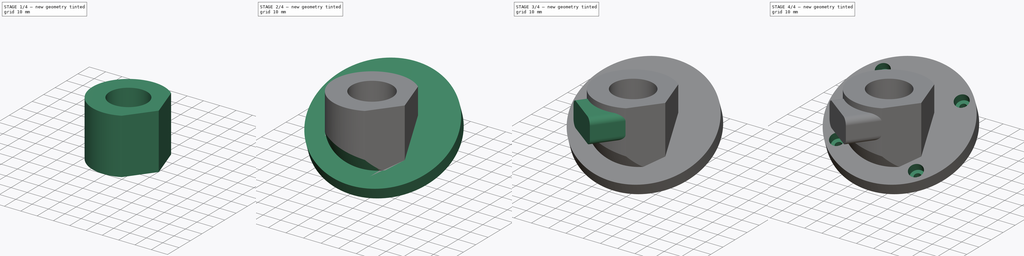
[diagram: build sequence overview — one tinted view per stage of 4, left to right]
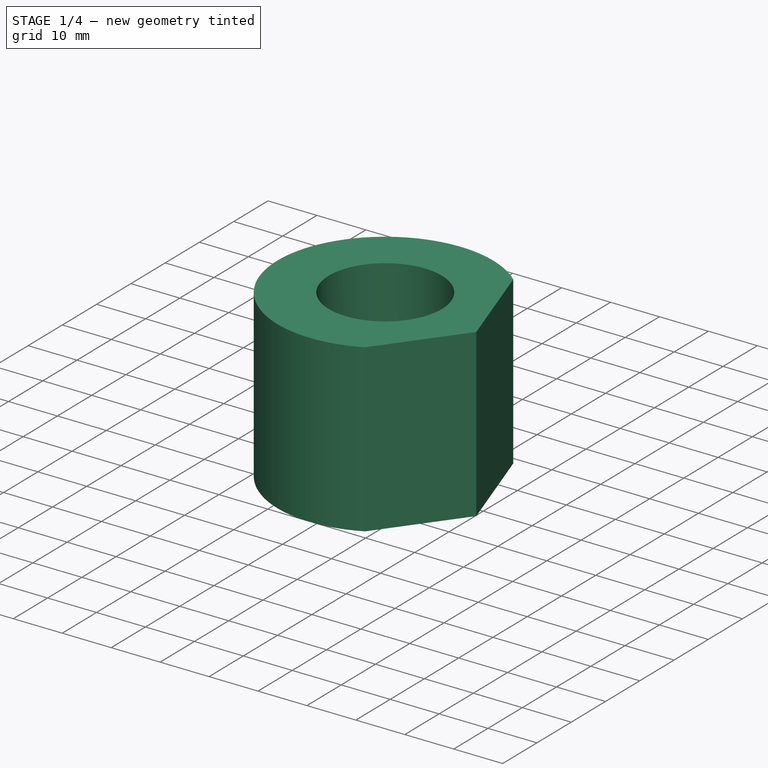
[diagram: stage 1 of 4 — iso view after this stage's code; geometry added in this stage tinted green]
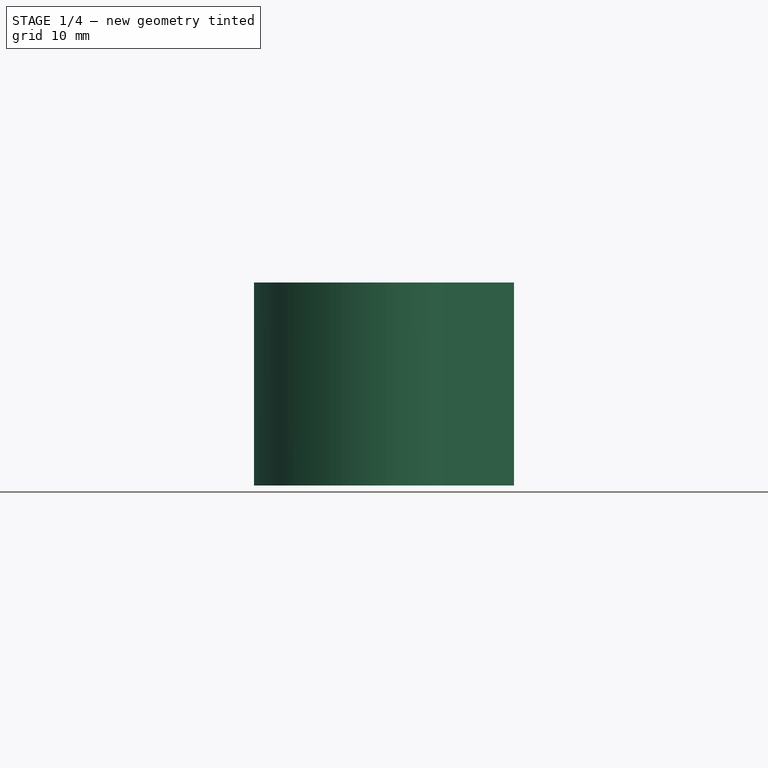
[diagram: stage 1 of 4 — front view after this stage's code; geometry added in this stage tinted green]
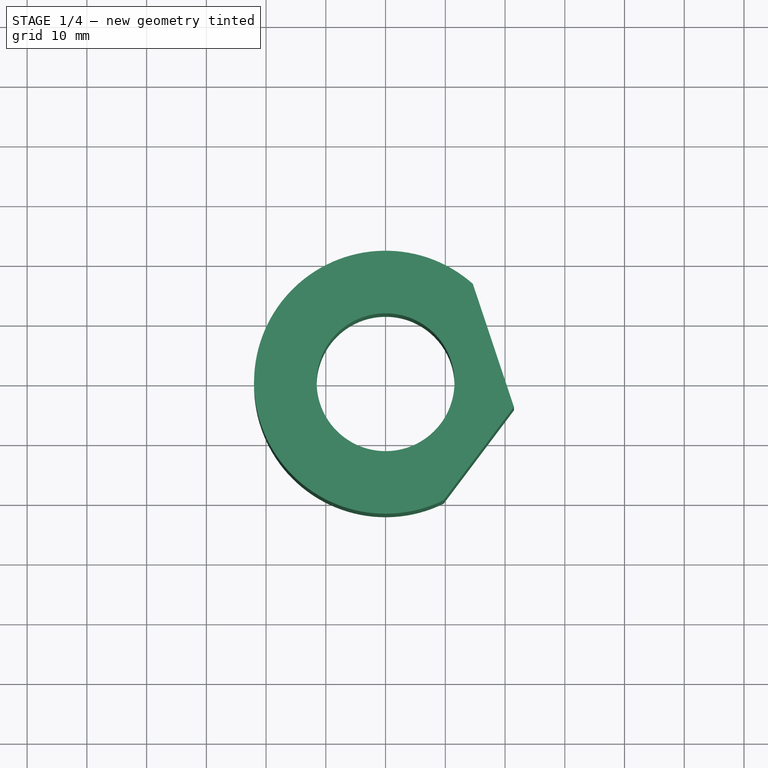
[diagram: stage 1 of 4 — top view after this stage's code; geometry added in this stage tinted green]
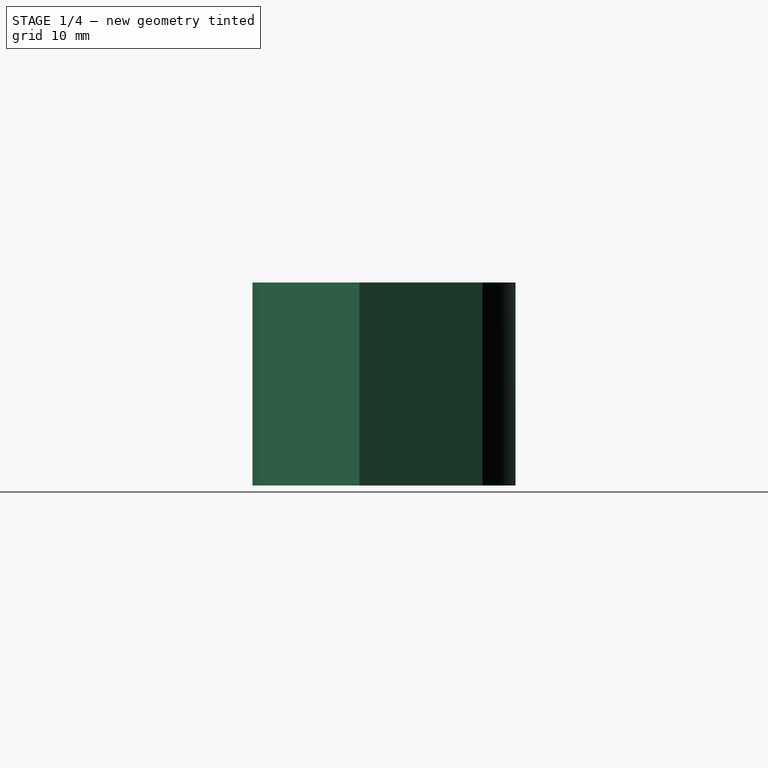
[diagram: stage 1 of 4 — right view after this stage's code; geometry added in this stage tinted green]
FCSTD DOCUMENT  (FreeCAD 0.21R33771 (Git))
Label: ex15
License: All rights reserved
LicenseURL: https://en.wikipedia.org/wiki/All_rights_reserved
objects: Sketcher::SketchObject×9, PartDesign::Pocket×6, PartDesign::Pad×4, PartDesign::Plane×1, PartDesign::Body×1
note: 31 computed .brp shape members not serialized (recipe doc carries the construction recipe); baked Part::Feature solids carry a one-line shape summary decoded from their .brp

FEATURE [Sketcher::SketchObject] Sketch
  FullyConstrained = false
  MapMode = 5
  Support = -> [XY_Plane]
  sketch-geometry (2):
    g0: Circle CenterX=0 CenterY=0 CenterZ=0 NormalX=0 NormalY=0 NormalZ=1 AngleXU=0 Radius=22.0162
    g1: Circle CenterX=0 CenterY=0 CenterZ=0 NormalX=0 NormalY=0 NormalZ=1 AngleXU=0 Radius=11.5391
  constraints (2):
    c: Coincident(g0,g-1)
    c: Coincident(g1,g0)
FEATURE [PartDesign::Pad] Pad
  Direction = (0,0,1)
  Length = 34
  Length2 = 10
  Profile = -> Sketch
  ReferenceAxis = -> Sketch [N_Axis]
  Type = 0
FEATURE [Sketcher::SketchObject] Sketch001
  FullyConstrained = false
  MapMode = 5
  Placement = pos=(0,0,34) rot=(0,0,1;0rad)
  Support = -> [Pad]
  sketch-geometry (5):
    g0: LineSegment StartX=13.7739 StartY=18.949 StartZ=0 EndX=21.4893 EndY=-4.12842 EndZ=0
    g1: LineSegment StartX=21.4893 StartY=-4.12842 StartZ=0 EndX=7.7952 EndY=-22.3093 EndZ=0
    g2: LineSegment StartX=13.7739 StartY=18.949 StartZ=0 EndX=25.6648 EndY=18.949 EndZ=0
    g3: LineSegment StartX=7.7952 StartY=-22.3093 StartZ=0 EndX=28.6535 EndY=-22.3093 EndZ=0
    g4: LineSegment StartX=25.6648 StartY=18.949 StartZ=0 EndX=28.6535 EndY=-22.3093 EndZ=0
  constraints (7):
    c: Coincident(g1,g0)
    c: Coincident(g2,g0)
    c: Horizontal(g2)
    c: Coincident(g3,g1)
    c: Horizontal(g3)
    c: Coincident(g4,g2)
    c: Coincident(g4,g3)
FEATURE [PartDesign::Pocket] Pocket
  BaseFeature = -> Pad
  Direction = (0,0,-1)
  Length = 5
  Length2 = 5
  Profile = -> Sketch001
  ReferenceAxis = -> Sketch001 [N_Axis]
  Type = 1
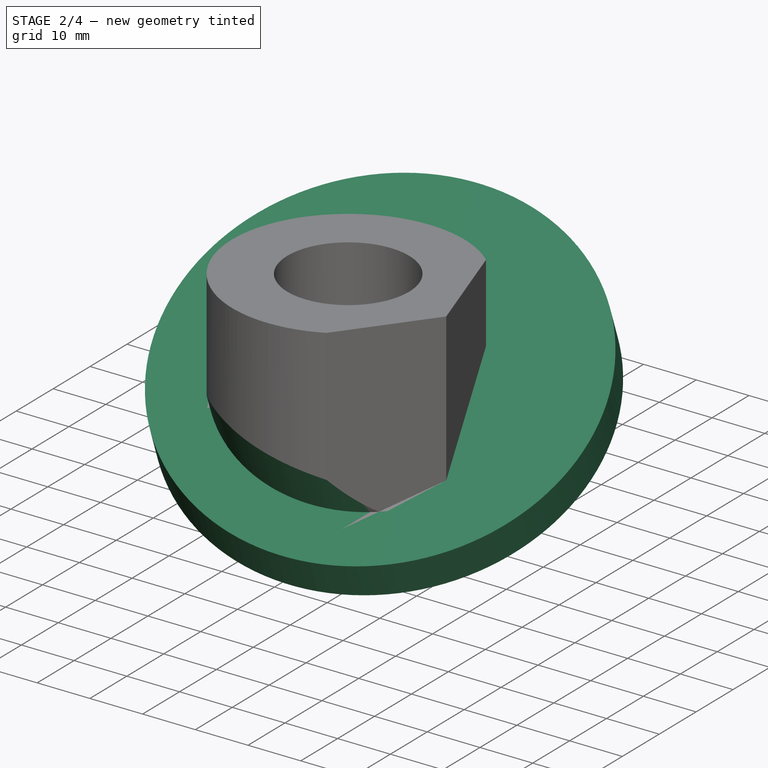
[diagram: stage 2 of 4 — iso view after this stage's code; geometry added in this stage tinted green]
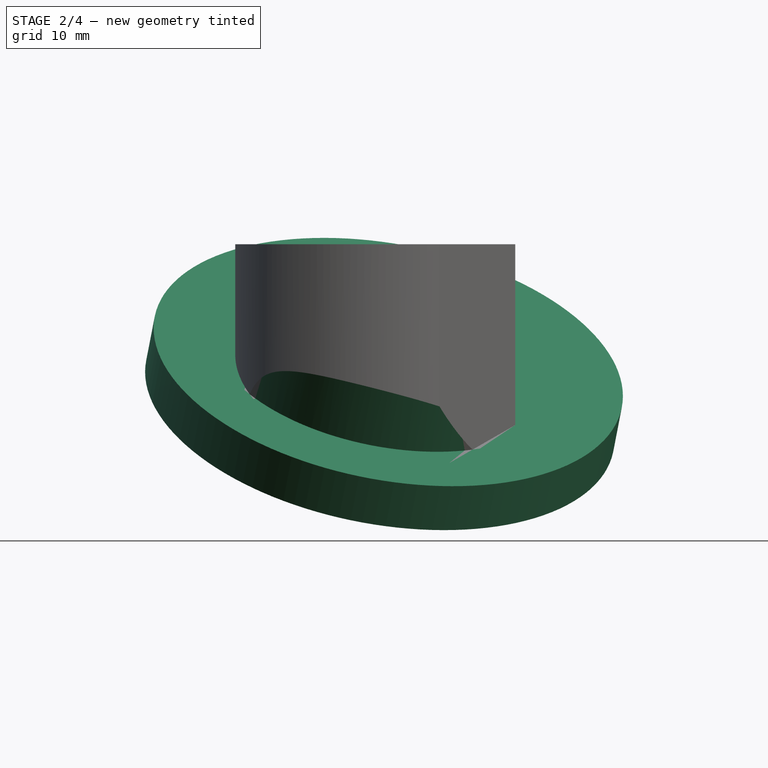
[diagram: stage 2 of 4 — front view after this stage's code; geometry added in this stage tinted green]
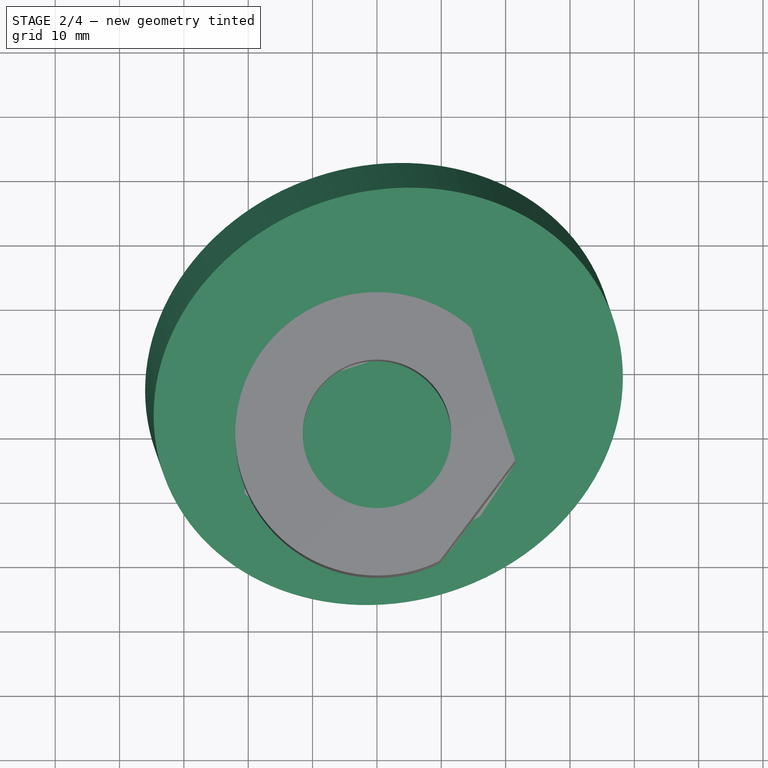
[diagram: stage 2 of 4 — top view after this stage's code; geometry added in this stage tinted green]
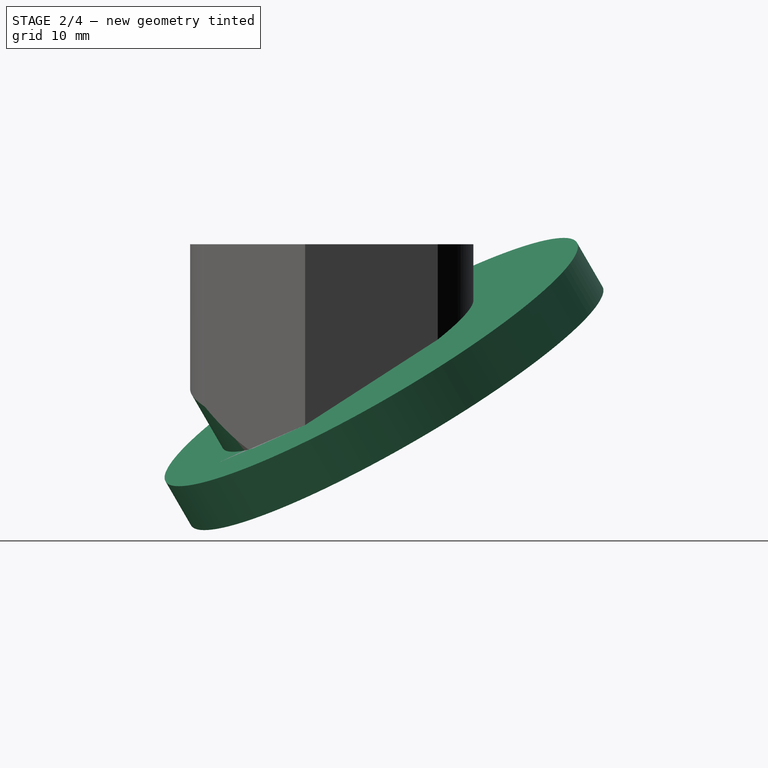
[diagram: stage 2 of 4 — right view after this stage's code; geometry added in this stage tinted green]
FEATURE [Sketcher::SketchObject] Sketch002
  FullyConstrained = false
  MapMode = 5
  Placement = pos=(18.0874,6.04706,0) rot=(0.453742,0.630126,0.630126;2.28967rad)
  Support = -> [Pocket]
  sketch-geometry (3):
    g0: LineSegment StartX=24.3717 StartY=27.3847 StartZ=0 EndX=-30.0277 EndY=-5.8956 EndZ=0
    g1: LineSegment StartX=-30.0277 StartY=-5.8956 StartZ=0 EndX=27.5617 EndY=-5.8956 EndZ=0
    g2: LineSegment StartX=24.3717 StartY=27.3847 StartZ=0 EndX=27.5617 EndY=-5.8956 EndZ=0
  constraints (4):
    c: Coincident(g1,g0)
    c: Horizontal(g1)
    c: Coincident(g2,g0)
    c: Coincident(g2,g1)
FEATURE [PartDesign::Pocket] Pocket001
  BaseFeature = -> Pocket
  Direction = (-0.948401,-0.317075,1e-16)
  Length = 5
  Length2 = 5
  Profile = -> Sketch002
  ReferenceAxis = -> Sketch002 [N_Axis]
  Type = 1
FEATURE [Sketcher::SketchObject] Sketch003
  FullyConstrained = false
  MapMode = 5
  Placement = pos=(1.7608,-5.26672,9.07728) rot=(0.996299,0.022335,-0.083001;3.66548rad)
  Support = -> [Pocket001]
  sketch-geometry (1):
    g0: Circle CenterX=0 CenterY=-13.1902 CenterZ=0 NormalX=0 NormalY=0 NormalZ=1 AngleXU=0 Radius=36.9753
  constraints (1):
    c: PointOnObject(g0,g-2)
FEATURE [PartDesign::Pad] Pad001
  BaseFeature = -> Pocket001
  Direction = (-0.16547,0.494936,-0.853029)
  Length = 8
  Length2 = 10
  Profile = -> Sketch003
  ReferenceAxis = -> Sketch003 [N_Axis]
  Type = 0
FEATURE [Sketcher::SketchObject] Sketch005
  FullyConstrained = false
  MapMode = 5
  Placement = pos=(1.7608,-5.26672,9.07728) rot=(0.996299,0.022335,-0.083001;3.66548rad)
  Support = -> [Pocket001]
  sketch-geometry (2):
    g0: Circle CenterX=0 CenterY=-13.1902 CenterZ=0 NormalX=0 NormalY=0 NormalZ=1 AngleXU=0 Radius=36.9753
    g1: Circle CenterX=0 CenterY=-14.5043 CenterZ=0 NormalX=0 NormalY=0 NormalZ=1 AngleXU=0 Radius=27.9867
  constraints (2):
    c: PointOnObject(g0,g-2)
    c: PointOnObject(g1,g-2)
FEATURE [PartDesign::Pocket] Pocket002
  BaseFeature = -> Pad001
  Direction = (0.16547,-0.494936,0.853029)
  Length = 24
  Length2 = 5
  Profile = -> Sketch005
  ReferenceAxis = -> Sketch005 [N_Axis]
  Type = 0
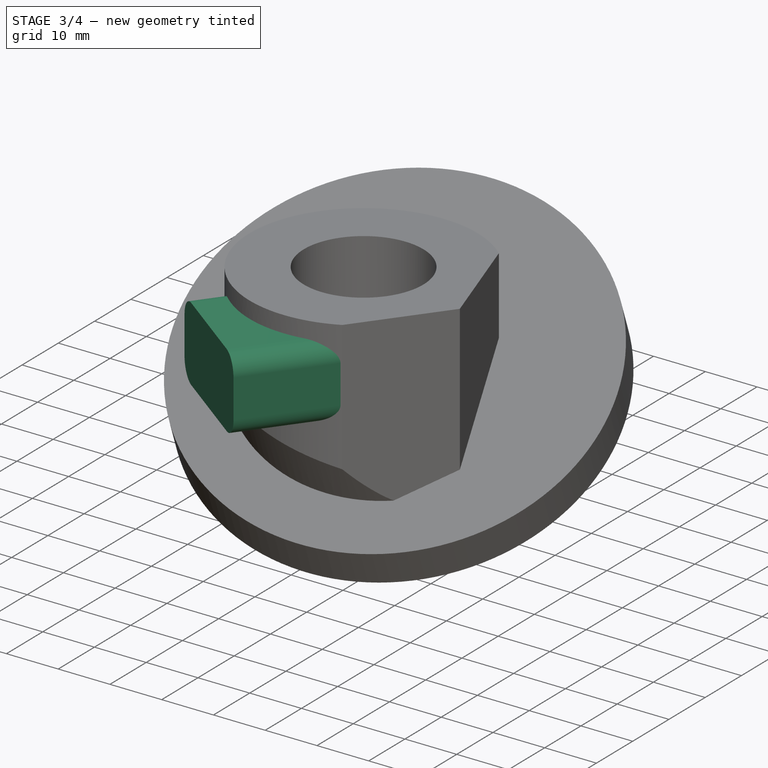
[diagram: stage 3 of 4 — iso view after this stage's code; geometry added in this stage tinted green]
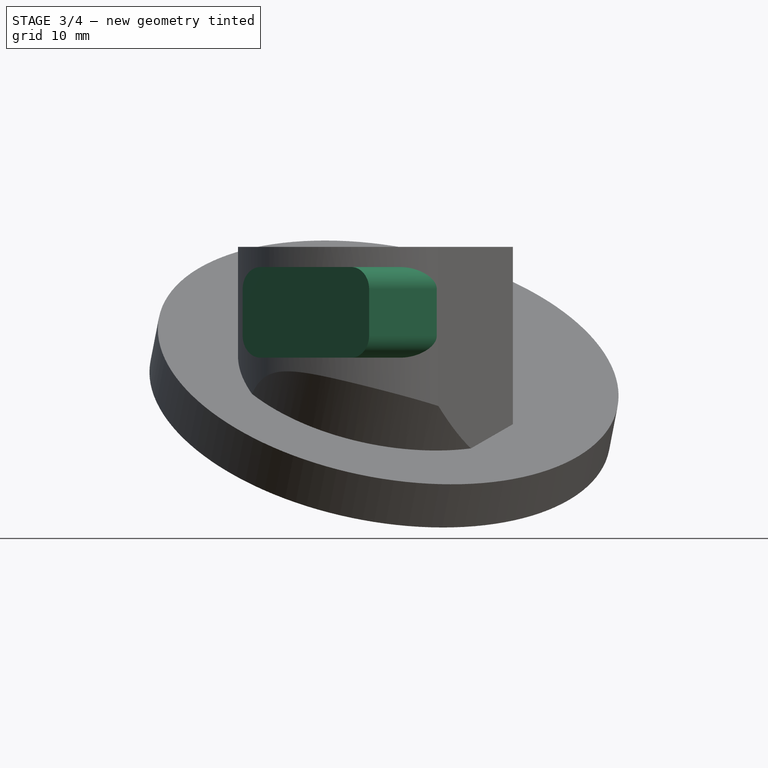
[diagram: stage 3 of 4 — front view after this stage's code; geometry added in this stage tinted green]
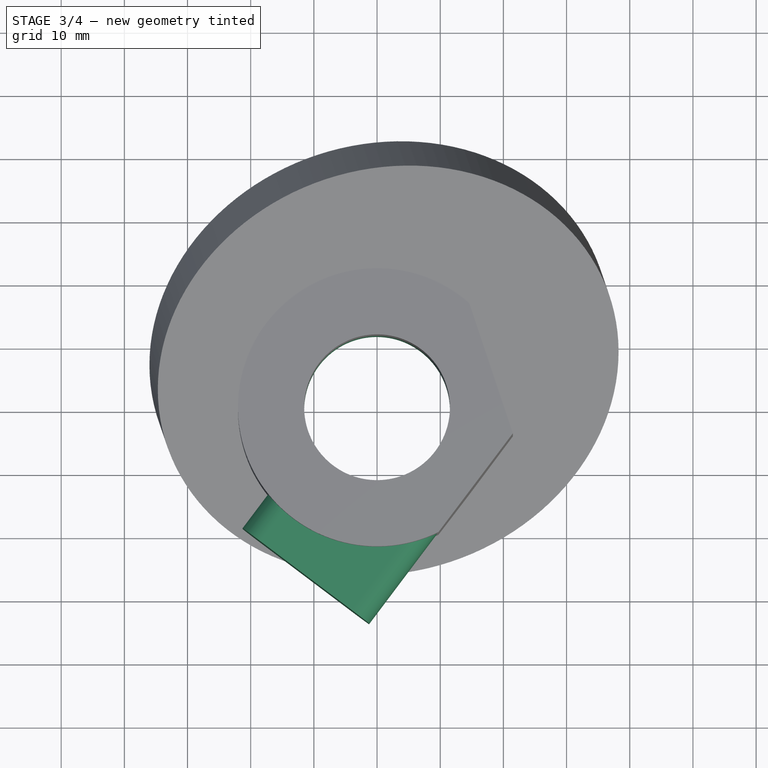
[diagram: stage 3 of 4 — top view after this stage's code; geometry added in this stage tinted green]
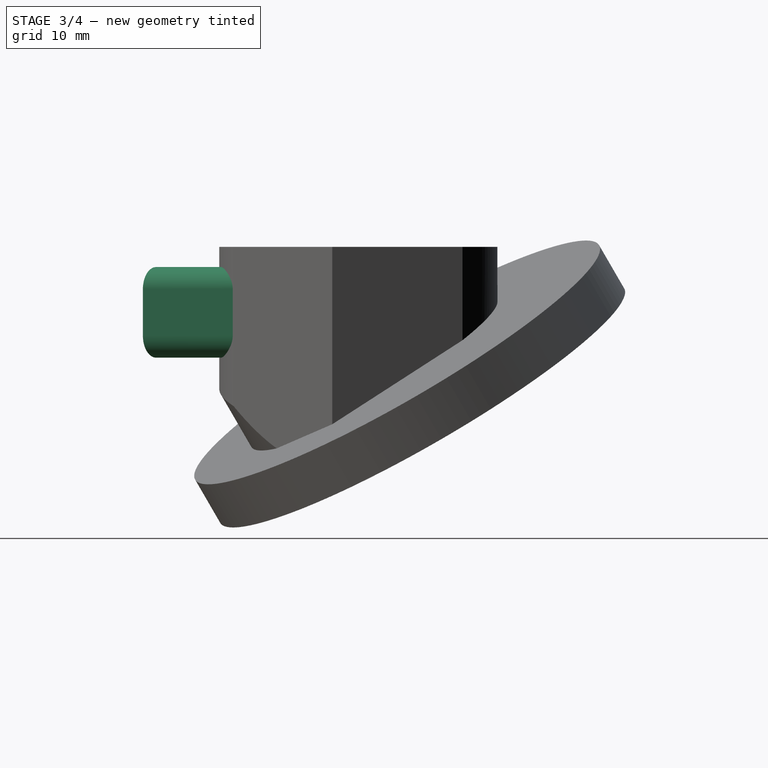
[diagram: stage 3 of 4 — right view after this stage's code; geometry added in this stage tinted green]
FEATURE [Sketcher::SketchObject] Sketch006
  FullyConstrained = false
  MapMode = 5
  Placement = pos=(1.7608,-5.26672,9.07728) rot=(0.996299,0.022335,-0.083001;3.66548rad)
  Support = -> [Pocket001]
  sketch-geometry (1):
    g0: Circle CenterX=0 CenterY=-13.1902 CenterZ=0 NormalX=0 NormalY=0 NormalZ=1 AngleXU=0 Radius=36.9753
  constraints (1):
    c: PointOnObject(g0,g-2)
FEATURE [PartDesign::Pad] Pad002
  BaseFeature = -> Pocket002
  Direction = (-0.16547,0.494936,-0.853029)
  Length = 0.01
  Length2 = 10
  Profile = -> Sketch006
  ReferenceAxis = -> Sketch006 [N_Axis]
  Reversed = true
  Type = 0
FEATURE [PartDesign::Plane] DatumPlane
  AttachmentOffset = pos=(0,0,0) rot=(0,-1,0;1.5708rad)
  Length = 121.119
  MapMode = 5
  Placement = pos=(15.6948,-11.8215,0) rot=(0.903971,-0.302355,-0.302355;1.67158rad)
  ResizeMode = 0
  Support = -> [Pad002]
  Width = 75.8914
FEATURE [Sketcher::SketchObject] Sketch007
  FullyConstrained = false
  MapMode = 5
  Placement = pos=(15.6948,-11.8215,0) rot=(0.903971,-0.302355,-0.302355;1.67158rad)
  Support = -> [DatumPlane]
  sketch-geometry (10):
    g0: ArcOfCircle CenterX=-3.63564 CenterY=27.3033 CenterZ=0 NormalX=0 NormalY=0 NormalZ=1 AngleXU=0 Radius=3.5006 StartAngle=4e-16 EndAngle=1.5708
    g1: LineSegment StartX=-0.135043 StartY=27.3033 StartZ=0 EndX=-0.135043 EndY=19.9605 EndZ=0
    g2: ArcOfCircle CenterX=-3.63564 CenterY=19.9605 CenterZ=0 NormalX=0 NormalY=0 NormalZ=1 AngleXU=0 Radius=3.5006 StartAngle=4.71239 EndAngle=6.28319
    g3: LineSegment StartX=-3.63564 StartY=16.4599 StartZ=0 EndX=-21.6926 EndY=16.4599 EndZ=0
    g4: ArcOfCircle CenterX=-21.6926 CenterY=19.9605 CenterZ=0 NormalX=0 NormalY=0 NormalZ=1 AngleXU=0 Radius=3.5006 StartAngle=3.14159 EndAngle=4.71239
    g5: LineSegment StartX=-25.1932 StartY=19.9605 StartZ=0 EndX=-25.1932 EndY=27.3033 EndZ=0
    g6: ArcOfCircle CenterX=-21.6926 CenterY=27.3033 CenterZ=0 NormalX=0 NormalY=0 NormalZ=1 AngleXU=0 Radius=3.5006 StartAngle=1.5708 EndAngle=3.14159
    g7: LineSegment StartX=-21.6926 StartY=30.8039 StartZ=0 EndX=-3.63564 EndY=30.8039 EndZ=0
    g8: GeomPoint X=-0.135043 Y=30.8039 Z=0
    g9: GeomPoint X=-25.1932 Y=16.4599 Z=0
  constraints (19):
    c: Tangent(g0,g1) = 1.5708
    c: Tangent(g1,g2) = 1.5708
    c: Tangent(g2,g3) = 1.5708
    c: Tangent(g3,g4) = 1.5708
    c: Tangent(g4,g5) = 1.5708
    c: Tangent(g5,g6) = 1.5708
    c: Tangent(g6,g7) = 1.5708
    c: Tangent(g7,g0) = 1.5708
    c: Horizontal(g3)
    c: Horizontal(g7)
    c: Vertical(g1)
    c: Vertical(g5)
    c: Equal(g0,g2)
    c: Equal(g2,g4)
    c: Equal(g4,g6)
    c: PointOnObject(g8,g1)
    c: PointOnObject(g8,g7)
    c: PointOnObject(g9,g3)
    c: PointOnObject(g9,g5)
FEATURE [PartDesign::Pad] Pad003
  BaseFeature = -> Pad002
  Direction = (-0.601641,-0.798767,0)
  Length = 28
  Length2 = 10
  Profile = -> Sketch007
  ReferenceAxis = -> Sketch007 [N_Axis]
  Type = 0
FEATURE [PartDesign::Pocket] Pocket003
  BaseFeature = -> Pad003
  Direction = (0,0,-1)
  Length = 5
  Length2 = 5
  Profile = -> Pad003 [Edge26]
  Type = 1
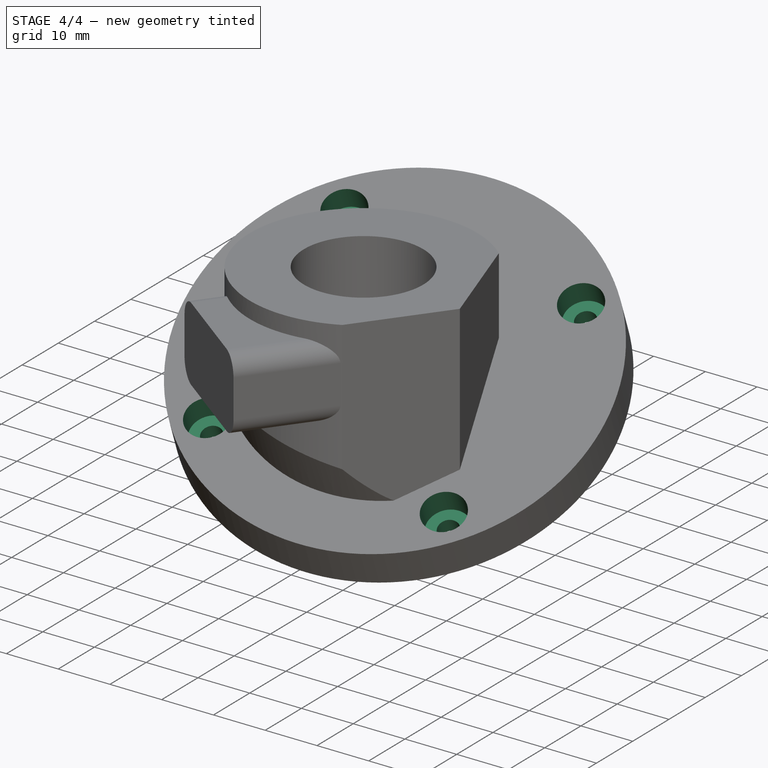
[diagram: stage 4 of 4 — iso view after this stage's code; geometry added in this stage tinted green]
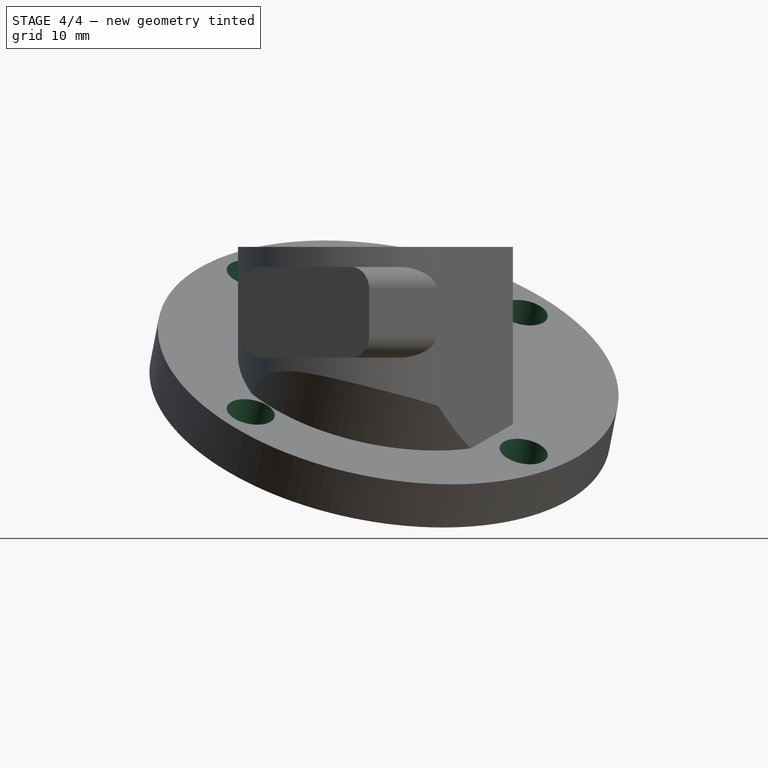
[diagram: stage 4 of 4 — front view after this stage's code; geometry added in this stage tinted green]
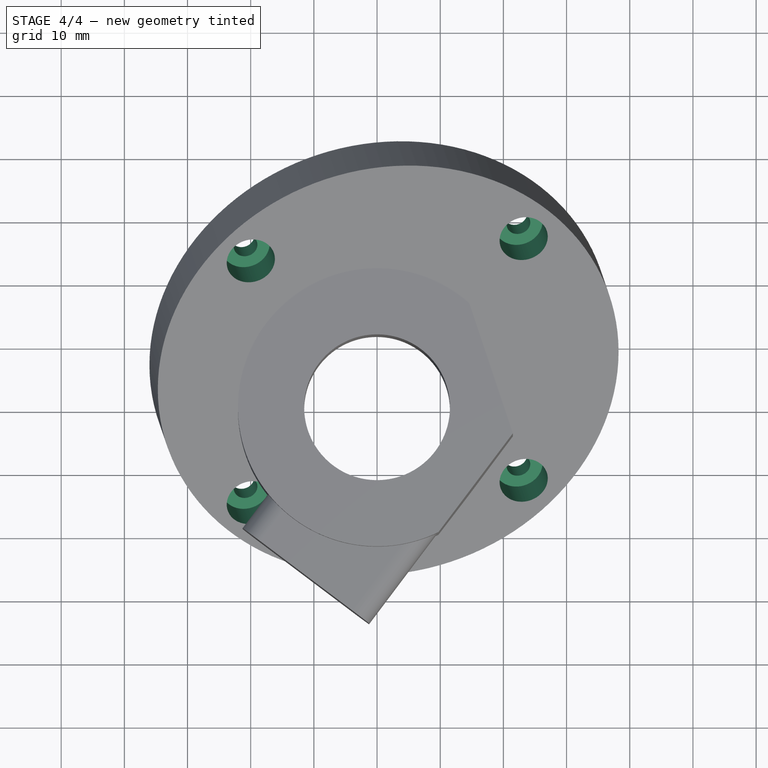
[diagram: stage 4 of 4 — top view after this stage's code; geometry added in this stage tinted green]
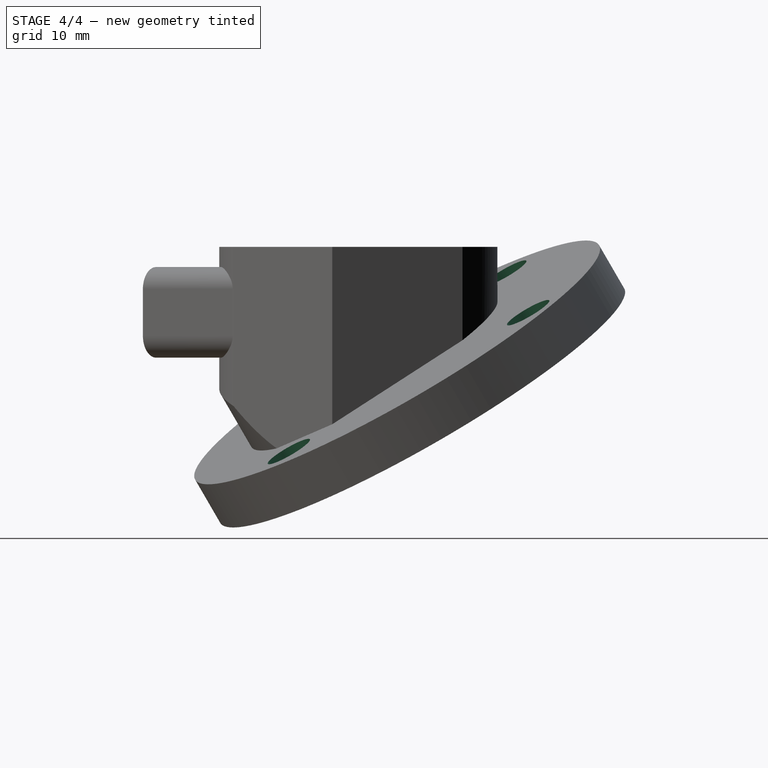
[diagram: stage 4 of 4 — right view after this stage's code; geometry added in this stage tinted green]
FEATURE [Sketcher::SketchObject] Sketch009
  FullyConstrained = false
  MapMode = 5
  Placement = pos=(1.76245,-5.27167,9.08581) rot=(0.952258,0.294807,0.079332;0.550815rad)
  Support = -> [Pocket003]
  sketch-geometry (8):
    g0: LineSegment StartX=-22.0501 StartY=35.0807 StartZ=0 EndX=21.7446 EndY=35.0807 EndZ=0
    g1: LineSegment StartX=21.7446 StartY=35.0807 StartZ=0 EndX=21.7446 EndY=-8.71403 EndZ=0
    g2: LineSegment StartX=21.7446 StartY=-8.71403 StartZ=0 EndX=-22.0501 EndY=-8.71403 EndZ=0
    g3: LineSegment StartX=-22.0501 StartY=-8.71403 StartZ=0 EndX=-22.0501 EndY=35.0807 EndZ=0
    g4: Circle CenterX=-22.0501 CenterY=35.0807 CenterZ=0 NormalX=0 NormalY=0 NormalZ=1 AngleXU=0 Radius=3.86157
    g5: Circle CenterX=21.7446 CenterY=35.0807 CenterZ=0 NormalX=0 NormalY=0 NormalZ=1 AngleXU=0 Radius=3.86157
    g6: Circle CenterX=21.7446 CenterY=-8.71403 CenterZ=0 NormalX=0 NormalY=0 NormalZ=1 AngleXU=0 Radius=3.86157
    g7: Circle CenterX=-22.0501 CenterY=-8.71403 CenterZ=0 NormalX=0 NormalY=0 NormalZ=1 AngleXU=0 Radius=3.86157
  constraints (16):
    c: Coincident(g0,g1)
    c: Coincident(g1,g2)
    c: Coincident(g2,g3)
    c: Coincident(g3,g0)
    c: Horizontal(g0)
    c: Horizontal(g2)
    c: Vertical(g1)
    c: Vertical(g3)
    c: Equal(g0,g1)
    c: Coincident(g4,g0)
    c: Coincident(g5,g0)
    c: Coincident(g6,g1)
    c: Coincident(g7,g2)
    c: Equal(g4,g7)
    c: Equal(g7,g6)
    c: Equal(g6,g5)
FEATURE [PartDesign::Pocket] Pocket004
  BaseFeature = -> Pocket003
  Direction = (-0.16547,0.494936,-0.853029)
  Length = 5
  Length2 = 5
  Profile = -> Sketch009
  ReferenceAxis = -> Sketch009 [N_Axis]
  Type = 0
FEATURE [Sketcher::SketchObject] Sketch010
  FullyConstrained = false
  MapMode = 5
  Placement = pos=(1.76245,-5.27167,9.08581) rot=(0.952258,0.294807,0.079332;0.550815rad)
  Support = -> [Pocket003]
  sketch-geometry (8):
    g0: LineSegment StartX=-22.0501 StartY=35.0807 StartZ=0 EndX=21.7446 EndY=35.0807 EndZ=0
    g1: LineSegment StartX=21.7446 StartY=35.0807 StartZ=0 EndX=21.7446 EndY=-8.71403 EndZ=0
    g2: LineSegment StartX=21.7446 StartY=-8.71403 StartZ=0 EndX=-22.0501 EndY=-8.71403 EndZ=0
    g3: LineSegment StartX=-22.0501 StartY=-8.71403 StartZ=0 EndX=-22.0501 EndY=35.0807 EndZ=0
    g4: Circle CenterX=-22.0501 CenterY=35.0807 CenterZ=0 NormalX=0 NormalY=0 NormalZ=1 AngleXU=0 Radius=1.89474
    g5: Circle CenterX=21.7446 CenterY=35.0807 CenterZ=0 NormalX=0 NormalY=0 NormalZ=1 AngleXU=0 Radius=1.89474
    g6: Circle CenterX=21.7446 CenterY=-8.71403 CenterZ=0 NormalX=0 NormalY=0 NormalZ=1 AngleXU=0 Radius=1.89474
    g7: Circle CenterX=-22.0501 CenterY=-8.71403 CenterZ=0 NormalX=0 NormalY=0 NormalZ=1 AngleXU=0 Radius=1.89474
  constraints (16):
    c: Coincident(g0,g1)
    c: Coincident(g1,g2)
    c: Coincident(g2,g3)
    c: Coincident(g3,g0)
    c: Horizontal(g0)
    c: Horizontal(g2)
    c: Vertical(g1)
    c: Vertical(g3)
    c: Equal(g0,g1)
    c: Coincident(g4,g0)
    c: Coincident(g5,g0)
    c: Coincident(g6,g1)
    c: Coincident(g7,g2)
    c: Equal(g4,g7)
    c: Equal(g7,g6)
    c: Equal(g6,g5)
FEATURE [PartDesign::Pocket] Pocket005
  BaseFeature = -> Pocket004
  Direction = (-0.16547,0.494936,-0.853029)
  Length = 5
  Length2 = 5
  Profile = -> Sketch010
  ReferenceAxis = -> Sketch010 [N_Axis]
  Type = 1
FEATURE [PartDesign::Body] Body
  Group = -> [Sketch,Pad,Sketch001,Pocket,Sketch002,Pocket001,Sketch003,Pad001,Sketch005,Pocket002,Sketch006,Pad002,DatumPlane,Sketch007,Pad003,Pocket003,Sketch009,Pocket004,Sketch010,Pocket005]
  Origin = -> Origin
  Tip = -> Pocket005
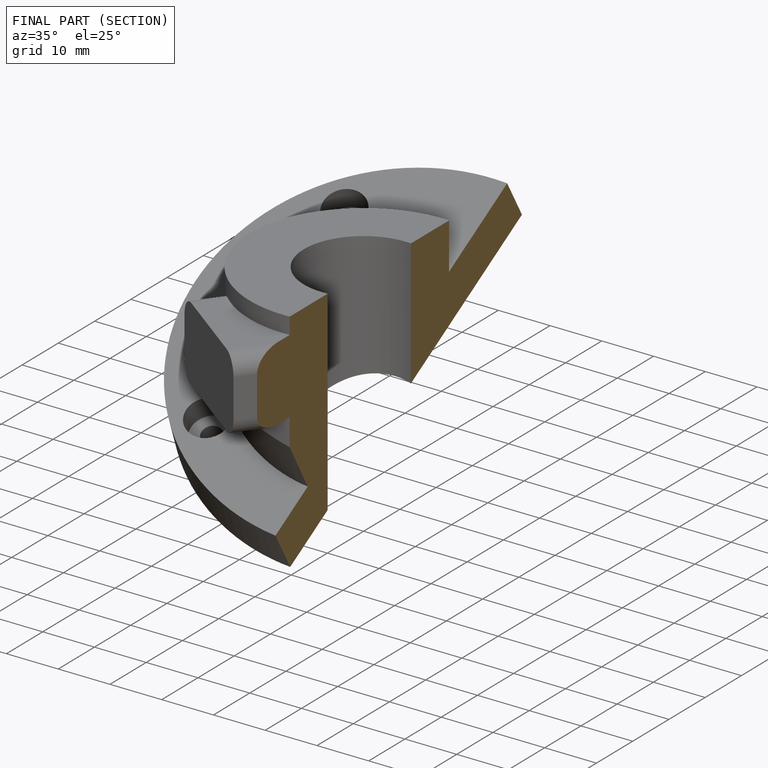
[diagram: finished part — half-section view (interior)]
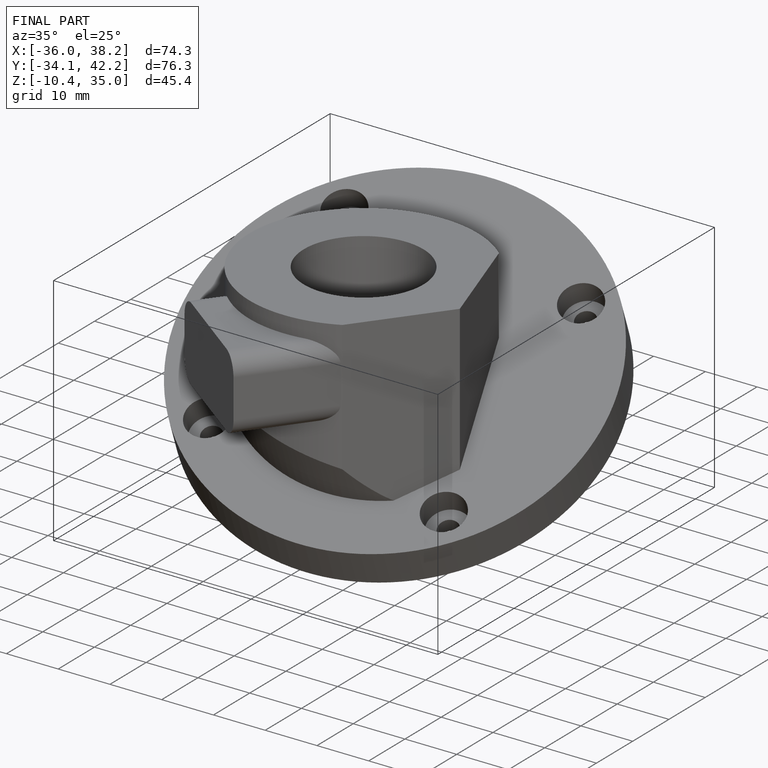
[diagram: finished part — iso view with bounding-box wireframe]
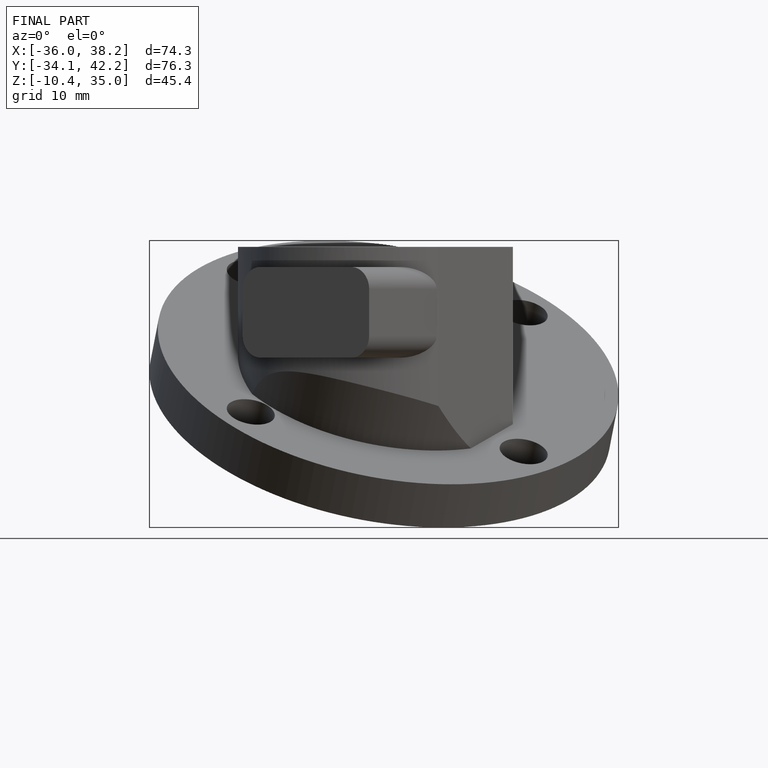
[diagram: finished part — front view with bounding-box wireframe]
